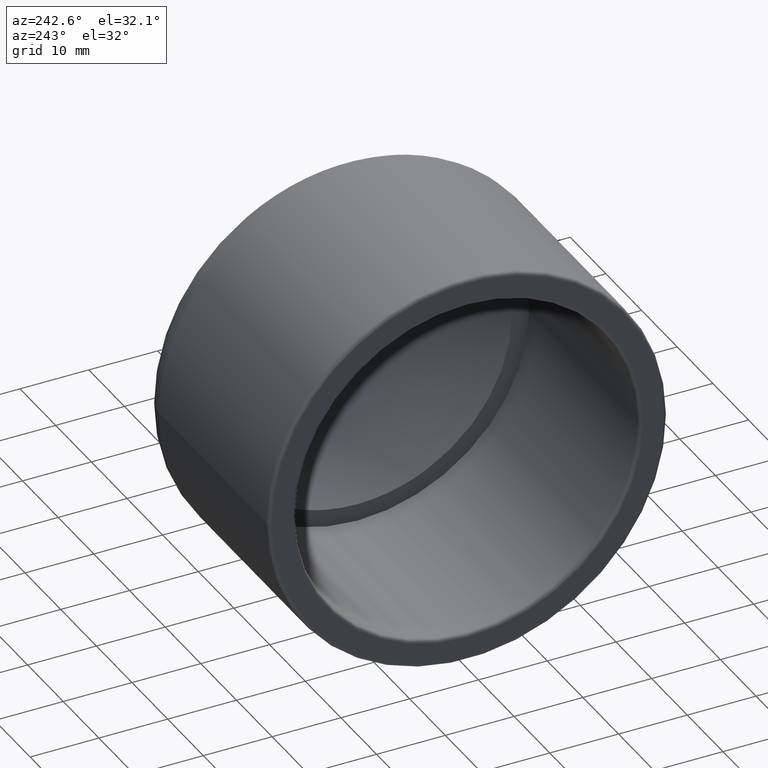
[diagram: clean part render]
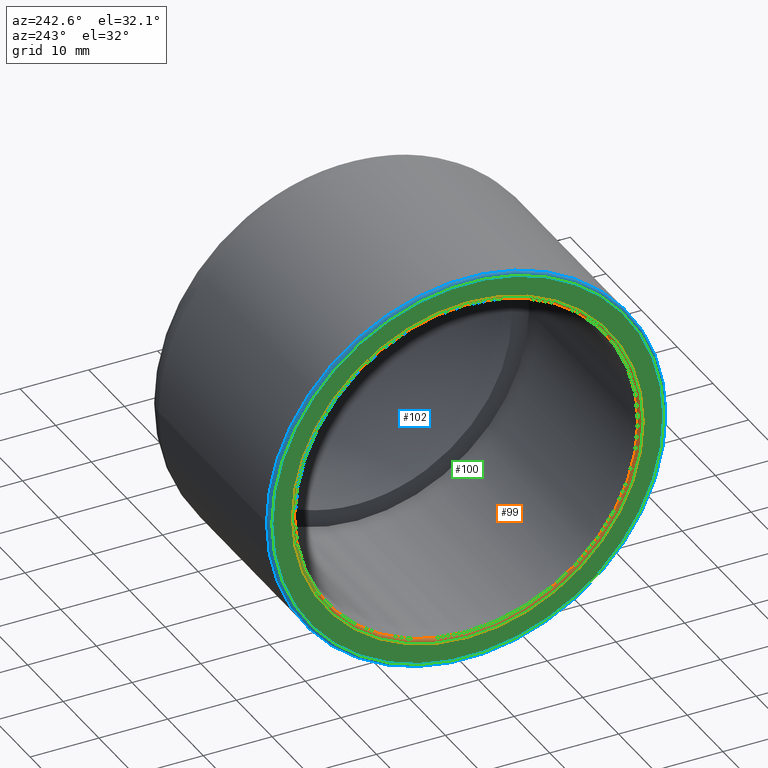
[diagram: same view with three faces highlighted in distinct colors, each labeled with its STEP entity id]
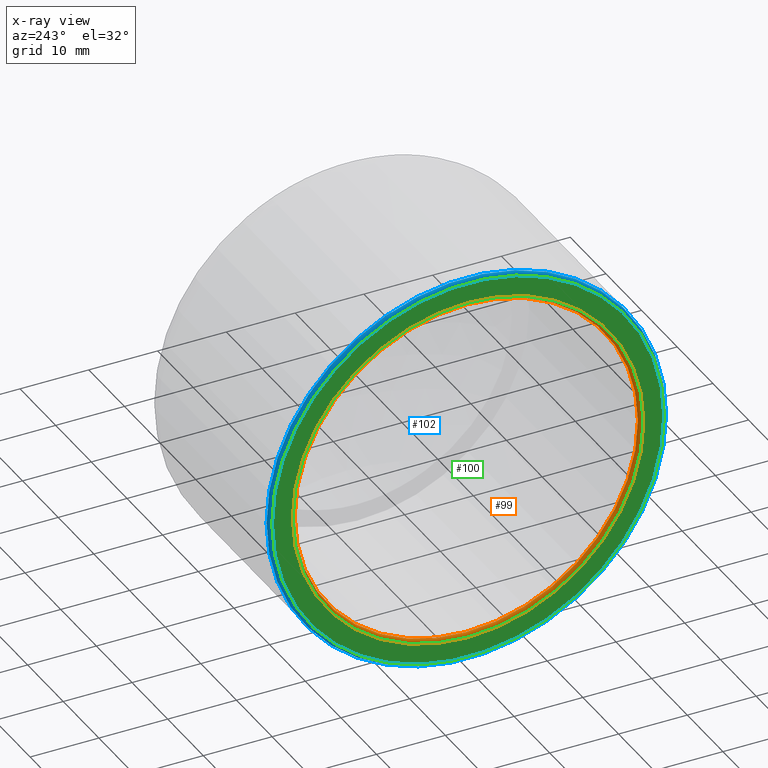
[diagram: x-ray of the same camera — body ghosted, the three highlighted faces saturated]
A machine part, auxiliary view with three faces highlighted in distinct colors.
The next image is the same camera in x-ray (body ghosted, the three faces saturated) — at least one of them is partly hidden behind the body in this view.
Their STEP definitions:

[orange] entity #99 — the highlighted toroidal blend (fillet) surface has major radius 25.5 mm and minor (blend) radius 0.5 mm.
#23=FACE_BOUND('',#43,.T.);
#31=FACE_OUTER_BOUND('',#42,.T.);
#42=EDGE_LOOP('',(#82));
#43=EDGE_LOOP('',(#83));
#56=CIRCLE('',#114,25.);
#57=CIRCLE('',#115,25.5);
#64=VERTEX_POINT('',#171);
#65=VERTEX_POINT('',#173);
#72=EDGE_CURVE('',#64,#64,#56,.T.);
#73=EDGE_CURVE('',#65,#65,#57,.T.);
#82=ORIENTED_EDGE('',*,*,#72,.T.);
#83=ORIENTED_EDGE('',*,*,#73,.T.);
#94=TOROIDAL_SURFACE('',#113,25.5,0.5);
#99=ADVANCED_FACE('',(#31,#23),#94,.T.);
#113=AXIS2_PLACEMENT_3D('',#170,#138,#139);
#114=AXIS2_PLACEMENT_3D('',#172,#140,#141);
#115=AXIS2_PLACEMENT_3D('',#174,#142,#143);
#138=DIRECTION('center_axis',(1.,1.93071343521368E-16,0.));
#139=DIRECTION('ref_axis',(0.,0.,-1.));
#140=DIRECTION('center_axis',(1.,1.93071343521368E-16,0.));
#141=DIRECTION('ref_axis',(1.94289029309402E-16,-1.,1.83697019872103E-16));
#142=DIRECTION('center_axis',(-1.,-1.93071343521368E-16,0.));
#143=DIRECTION('ref_axis',(1.93071343521368E-16,-1.,1.83697019872103E-16));
#170=CARTESIAN_POINT('Origin',(-46.5,-8.97781747374362E-15,0.));
#171=CARTESIAN_POINT('',(-46.5,25.,-1.53080849893419E-15));
#172=CARTESIAN_POINT('Origin',(-46.5,-8.97781747374362E-15,0.));
#173=CARTESIAN_POINT('',(-47.,25.5,-7.80712334456438E-15));
#174=CARTESIAN_POINT('Origin',(-47.,-9.0743531455043E-15,0.));

[blue] entity #102 — the highlighted toroidal blend (fillet) surface has major radius 28.5 mm and minor (blend) radius 0.5 mm.
#26=FACE_BOUND('',#49,.T.);
#34=FACE_OUTER_BOUND('',#48,.T.);
#48=EDGE_LOOP('',(#88));
#49=EDGE_LOOP('',(#89));
#55=CIRCLE('',#111,29.);
#58=CIRCLE('',#117,28.5);
#63=VERTEX_POINT('',#167);
#66=VERTEX_POINT('',#176);
#71=EDGE_CURVE('',#63,#63,#55,.T.);
#74=EDGE_CURVE('',#66,#66,#58,.T.);
#88=ORIENTED_EDGE('',*,*,#74,.T.);
#89=ORIENTED_EDGE('',*,*,#71,.T.);
#95=TOROIDAL_SURFACE('',#120,28.5,0.5);
#102=ADVANCED_FACE('',(#34,#26),#95,.T.);
#111=AXIS2_PLACEMENT_3D('',#168,#134,#135);
#117=AXIS2_PLACEMENT_3D('',#177,#146,#147);
#120=AXIS2_PLACEMENT_3D('',#181,#152,#153);
#134=DIRECTION('center_axis',(-1.,-1.93071343521368E-16,0.));
#135=DIRECTION('ref_axis',(1.93810484902236E-16,-1.,1.83697019872103E-16));
#146=DIRECTION('center_axis',(1.,1.93071343521368E-16,0.));
#147=DIRECTION('ref_axis',(1.93071343521368E-16,-1.,1.83697019872103E-16));
#152=DIRECTION('center_axis',(1.,1.93071343521368E-16,0.));
#153=DIRECTION('ref_axis',(0.,0.,-1.));
#167=CARTESIAN_POINT('',(-46.5,29.,-8.87868929381831E-15));
#168=CARTESIAN_POINT('Origin',(-46.5,-8.97781747374362E-15,0.));
#176=CARTESIAN_POINT('',(-47.,28.5,-1.74512168878498E-15));
#177=CARTESIAN_POINT('Origin',(-47.,-9.0743531455043E-15,0.));
#181=CARTESIAN_POINT('Origin',(-46.5,-8.97781747374362E-15,0.));

[green] entity #100 — the highlighted planar face has unit normal (-1, -0, 0).
#15=PLANE('',#116);
#24=FACE_BOUND('',#45,.T.);
#32=FACE_OUTER_BOUND('',#44,.T.);
#44=EDGE_LOOP('',(#84));
#45=EDGE_LOOP('',(#85));
#57=CIRCLE('',#115,25.5);
#58=CIRCLE('',#117,28.5);
#65=VERTEX_POINT('',#173);
#66=VERTEX_POINT('',#176);
#73=EDGE_CURVE('',#65,#65,#57,.T.);
#74=EDGE_CURVE('',#66,#66,#58,.T.);
#84=ORIENTED_EDGE('',*,*,#74,.F.);
#85=ORIENTED_EDGE('',*,*,#73,.F.);
#100=ADVANCED_FACE('',(#32,#24),#15,.T.);
#115=AXIS2_PLACEMENT_3D('',#174,#142,#143);
#116=AXIS2_PLACEMENT_3D('',#175,#144,#145);
#117=AXIS2_PLACEMENT_3D('',#177,#146,#147);
#142=DIRECTION('center_axis',(-1.,-1.93071343521368E-16,0.));
#143=DIRECTION('ref_axis',(1.93071343521368E-16,-1.,1.83697019872103E-16));
#144=DIRECTION('center_axis',(-1.,-1.93071343521368E-16,0.));
#145=DIRECTION('ref_axis',(0.,0.,1.));
#146=DIRECTION('center_axis',(1.,1.93071343521368E-16,0.));
#147=DIRECTION('ref_axis',(1.93071343521368E-16,-1.,1.83697019872103E-16));
#173=CARTESIAN_POINT('',(-47.,25.5,-7.80712334456438E-15));
#174=CARTESIAN_POINT('Origin',(-47.,-9.0743531455043E-15,0.));
#175=CARTESIAN_POINT('Origin',(-47.,29.,0.));
#176=CARTESIAN_POINT('',(-47.,28.5,-1.74512168878498E-15));
#177=CARTESIAN_POINT('Origin',(-47.,-9.0743531455043E-15,0.));